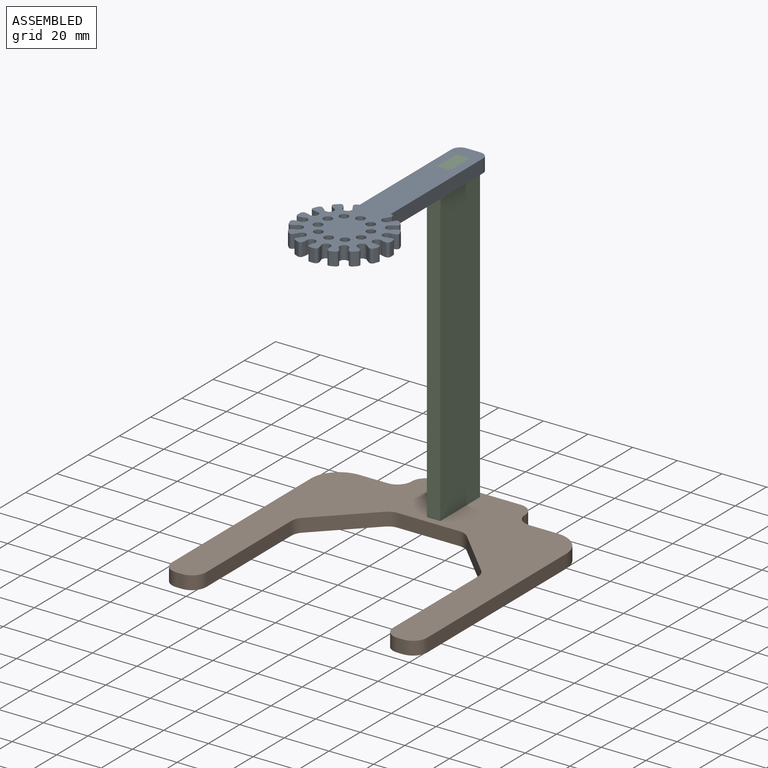
[diagram: assembled view]
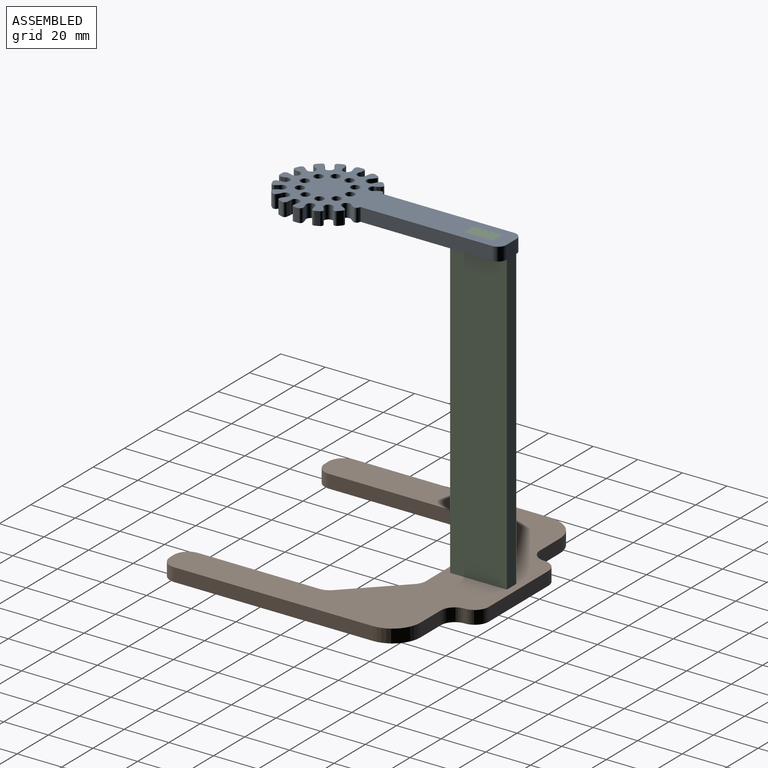
[diagram: assembled view, second angle]
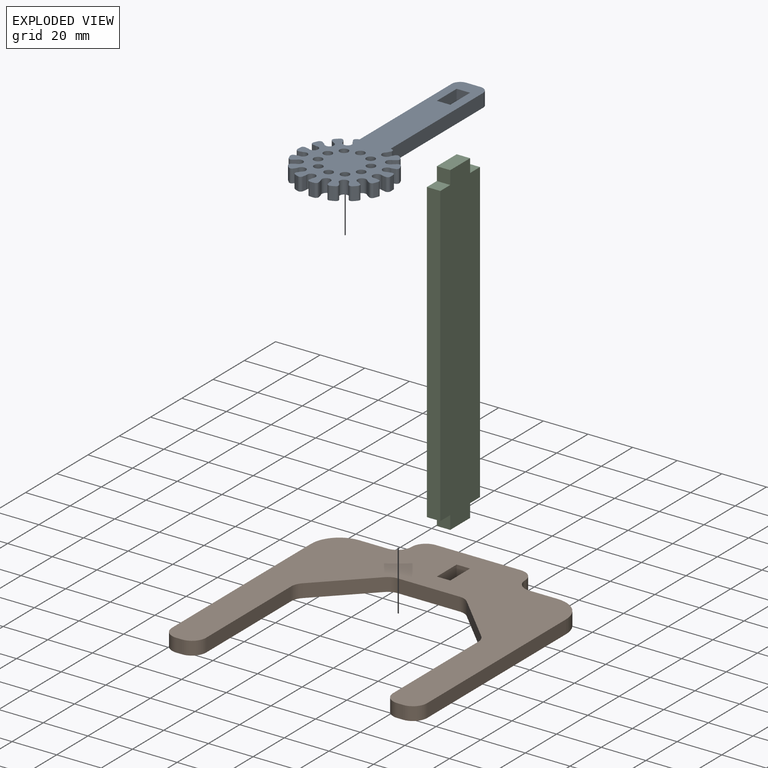
[diagram: exploded view]
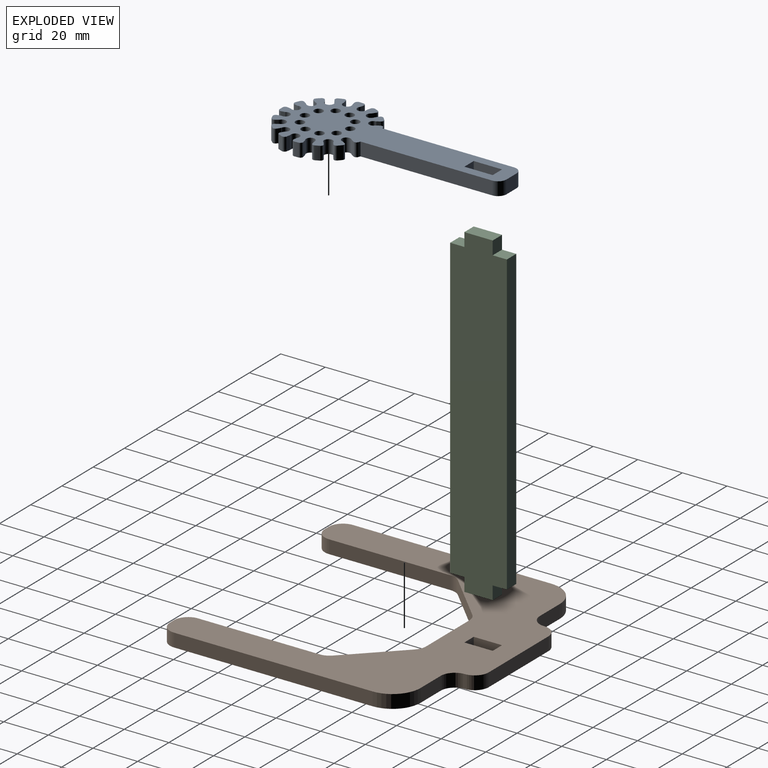
[diagram: exploded view, second angle]
ASSEMBLY  parts=3 mates=3
PART A: 134 faces, bbox 99.8x54.1x6 mm
  f0: plane 6x1.19mm, normal (0.77,-0.63,0), area 9.2mm2, adj f1,f115,f116,f117
  f1: cylinder r=1.2mm len=6mm, axis (0,0,-1), area 2.4mm2, adj f0,f2,f116,f117
  f2: cylinder r=1.95mm len=6mm, axis (0,0,-1), area 44.6mm2, adj f1,f3,f116,f117
  f3: cylinder r=1.2mm len=6mm, axis (0,0,-1), area 2.4mm2, adj f2,f4,f116,f117
  f4: plane 6x1.19mm, normal (-0.77,0.63,0), area 9.2mm2, adj f3,f5,f116,f117
  f5: cylinder r=1.2mm len=6mm, axis (0,0,-1), area 12.4mm2, adj f4,f6,f116,f117
  f6: cylinder r=20.87mm len=6mm, axis (0,0,-1), area 12mm2, adj f5,f7,f116,f117
  f7: cylinder r=1.2mm len=6mm, axis (0,0,-1), area 12.4mm2, adj f6,f8,f116,f117
  f8: plane 6x1.48mm, normal (0.96,-0.28,0), area 9.2mm2, adj f7,f9,f116,f117
  f9: cylinder r=1.2mm len=6mm, axis (0,0,-1), area 2.4mm2, adj f8,f10,f116,f117
  f10: cylinder r=1.95mm len=6mm, axis (0,0,-1), area 44.6mm2, adj f9,f11,f116,f117
  f11: cylinder r=1.2mm len=6mm, axis (0,0,-1), area 2.4mm2, adj f10,f12,f116,f117
  f12: plane 6x1.48mm, normal (-0.96,0.28,0), area 9.2mm2, adj f11,f13,f116,f117
  f13: cylinder r=1.2mm len=6mm, axis (0,0,-1), area 12.4mm2, adj f12,f14,f116,f117
  f14: cylinder r=20.87mm len=6mm, axis (0,0,-1), area 12mm2, adj f13,f15,f116,f117
  f15: cylinder r=1.2mm len=6mm, axis (0,0,-1), area 12.4mm2, adj f14,f16,f116,f117
  f16: plane 6x1.53mm, normal (0.99,0.11,0), area 9.2mm2, adj f15,f17,f116,f117
  f17: cylinder r=1.2mm len=6mm, axis (0,0,-1), area 2.4mm2, adj f16,f18,f116,f117
  f18: cylinder r=1.95mm len=6mm, axis (0,0,-1), area 44.6mm2, adj f17,f19,f116,f117
  f19: cylinder r=1.2mm len=6mm, axis (0,0,-1), area 2.4mm2, adj f18,f20,f116,f117
  f20: plane 6x1.53mm, normal (-0.99,-0.11,0), area 9.2mm2, adj f19,f21,f116,f117
  f21: cylinder r=1.2mm len=6mm, axis (0,0,-1), area 12.4mm2, adj f20,f22,f116,f117
  f22: cylinder r=20.87mm len=6mm, axis (0,0,-1), area 12mm2, adj f21,f23,f116,f117
  f23: cylinder r=1.2mm len=6mm, axis (0,0,-1), area 12.4mm2, adj f22,f24,f116,f117
  f24: plane 6x1.34mm, normal (0.87,0.49,0), area 9.2mm2, adj f23,f25,f116,f117
  f25: cylinder r=1.2mm len=6mm, axis (0,0,-1), area 2.4mm2, adj f24,f26,f116,f117
  f26: cylinder r=1.95mm len=6mm, axis (0,0,-1), area 44.6mm2, adj f25,f27,f116,f117
  f27: cylinder r=1.2mm len=6mm, axis (0,0,-1), area 2.4mm2, adj f26,f28,f116,f117
  f28: plane 6x1.34mm, normal (-0.87,-0.49,0), area 9.2mm2, adj f27,f29,f116,f117
  f29: cylinder r=1.2mm len=6mm, axis (0,0,-1), area 12.4mm2, adj f28,f30,f116,f117
  f30: cylinder r=20.87mm len=6mm, axis (0,0,-1), area 12mm2, adj f29,f31,f116,f117
  f31: cylinder r=1.2mm len=6mm, axis (0,0,-1), area 12.4mm2, adj f30,f32,f116,f117
  f32: plane 6x1.22mm, normal (0.61,0.79,0), area 9.2mm2, adj f31,f33,f116,f117
  f33: cylinder r=1.2mm len=6mm, axis (0,0,-1), area 2.4mm2, adj f32,f34,f116,f117
  f34: cylinder r=1.95mm len=6mm, axis (0,0,-1), area 44.6mm2, adj f33,f35,f116,f117
  f35: cylinder r=1.2mm len=6mm, axis (0,0,-1), area 2.4mm2, adj f34,f36,f116,f117
  f36: plane 6x1.22mm, normal (-0.61,-0.79,0), area 9.2mm2, adj f35,f37,f116,f117
  f37: cylinder r=1.2mm len=6mm, axis (0,0,-1), area 12.4mm2, adj f36,f38,f116,f117
  f38: cylinder r=20.87mm len=6mm, axis (0,0,-1), area 12mm2, adj f37,f39,f116,f117
  f39: cylinder r=1.2mm len=6mm, axis (0,0,-1), area 12.4mm2, adj f38,f40,f116,f117
  f40: plane 6x1.49mm, normal (0.25,0.97,0), area 9.2mm2, adj f39,f41,f116,f117
  f41: cylinder r=1.2mm len=6mm, axis (0,0,-1), area 2.4mm2, adj f40,f42,f116,f117
  f42: cylinder r=1.95mm len=6mm, axis (0,0,-1), area 44.6mm2, adj f41,f43,f116,f117
  f43: cylinder r=1.2mm len=6mm, axis (0,0,-1), area 2.4mm2, adj f42,f44,f116,f117
  f44: plane 6x1.49mm, normal (-0.25,-0.97,0), area 9.2mm2, adj f43,f45,f116,f117
  f45: cylinder r=1.2mm len=6mm, axis (0,0,-1), area 12.4mm2, adj f44,f46,f116,f117
  f46: cylinder r=20.87mm len=6mm, axis (0,0,-1), area 12mm2, adj f45,f47,f116,f117
  f47: cylinder r=1.2mm len=6mm, axis (0,0,-1), area 12.4mm2, adj f46,f48,f116,f117
  f48: plane 6x1.52mm, normal (-0.14,0.99,0), area 9.2mm2, adj f47,f49,f116,f117
  f49: cylinder r=1.2mm len=6mm, axis (0,0,-1), area 2.4mm2, adj f48,f50,f116,f117
  f50: cylinder r=1.95mm len=6mm, axis (0,0,-1), area 44.6mm2, adj f49,f51,f116,f117
  f51: cylinder r=1.2mm len=6mm, axis (0,0,-1), area 2.4mm2, adj f50,f52,f116,f117
  f52: plane 6x1.52mm, normal (0.14,-0.99,0), area 9.2mm2, adj f51,f53,f116,f117
  f53: cylinder r=1.2mm len=6mm, axis (0,0,-1), area 12.4mm2, adj f52,f54,f116,f117
  f54: cylinder r=20.87mm len=6mm, axis (0,0,-1), area 12mm2, adj f53,f55,f116,f117
  f55: cylinder r=1.2mm len=6mm, axis (0,0,-1), area 12.4mm2, adj f54,f56,f116,f117
  f56: plane 6x1.32mm, normal (-0.52,0.86,0), area 9.2mm2, adj f55,f57,f116,f117
  f57: cylinder r=1.2mm len=6mm, axis (0,0,-1), area 2.4mm2, adj f56,f58,f116,f117
  f58: cylinder r=1.95mm len=6mm, axis (0,0,-1), area 44.6mm2, adj f57,f59,f116,f117
  f59: cylinder r=1.2mm len=6mm, axis (0,0,-1), area 2.4mm2, adj f58,f60,f116,f117
  f60: plane 6x1.32mm, normal (0.52,-0.86,0), area 9.2mm2, adj f59,f61,f116,f117
  f61: cylinder r=1.2mm len=6mm, axis (0,0,-1), area 12.4mm2, adj f60,f62,f116,f117
  f62: cylinder r=20.87mm len=6mm, axis (0,0,-1), area 12mm2, adj f61,f63,f116,f117
  f63: cylinder r=1.2mm len=6mm, axis (0,0,-1), area 12.4mm2, adj f62,f64,f116,f117
  f64: plane 6x1.24mm, normal (-0.81,0.59,0), area 9.2mm2, adj f63,f65,f116,f117
  f65: cylinder r=1.2mm len=6mm, axis (0,0,-1), area 2.4mm2, adj f64,f66,f116,f117
  f66: cylinder r=1.95mm len=6mm, axis (0,0,-1), area 44.6mm2, adj f65,f67,f116,f117
  f67: cylinder r=1.2mm len=6mm, axis (0,0,-1), area 2.4mm2, adj f66,f68,f116,f117
  f68: plane 6x1.24mm, normal (0.81,-0.59,0), area 9.2mm2, adj f67,f69,f116,f117
  f69: cylinder r=1.2mm len=6mm, axis (0,0,-1), area 12.4mm2, adj f68,f70,f116,f117
  f70: cylinder r=20.87mm len=6mm, axis (0,0,-1), area 12mm2, adj f69,f71,f116,f117
  f71: cylinder r=1.2mm len=6mm, axis (0,0,-1), area 12.4mm2, adj f70,f72,f116,f117
  f72: plane 6x1.5mm, normal (-0.97,0.23,0), area 9.2mm2, adj f71,f73,f116,f117
  f73: cylinder r=1.2mm len=6mm, axis (0,0,-1), area 2.4mm2, adj f72,f74,f116,f117
  f74: cylinder r=1.95mm len=6mm, axis (0,0,-1), area 44.6mm2, adj f73,f75,f116,f117
  f75: cylinder r=1.2mm len=6mm, axis (0,0,-1), area 2.4mm2, adj f74,f76,f116,f117
  f76: plane 6x1.5mm, normal (0.97,-0.23,0), area 9.2mm2, adj f75,f77,f116,f117
  f77: cylinder r=1.2mm len=6mm, axis (0,0,-1), area 12.4mm2, adj f76,f78,f116,f117
  f78: cylinder r=20.87mm len=6mm, axis (0,0,-1), area 12mm2, adj f77,f79,f116,f117
  f79: cylinder r=1.2mm len=6mm, axis (0,0,-1), area 12.4mm2, adj f78,f80,f116,f117
  f80: plane 6x1.52mm, normal (-0.99,-0.17,0), area 9.2mm2, adj f79,f81,f116,f117
  f81: cylinder r=1.2mm len=6mm, axis (0,0,-1), area 2.4mm2, adj f80,f82,f116,f117
  f82: cylinder r=1.95mm len=6mm, axis (0,0,-1), area 44.6mm2, adj f81,f83,f116,f117
  f83: cylinder r=1.2mm len=6mm, axis (0,0,-1), area 2.4mm2, adj f82,f84,f116,f117
  f84: plane 6x1.52mm, normal (0.99,0.17,0), area 9.2mm2, adj f83,f85,f116,f117
  f85: cylinder r=1.2mm len=6mm, axis (0,0,-1), area 12.4mm2, adj f84,f86,f116,f117
  f86: cylinder r=20.87mm len=6mm, axis (0,0,-1), area 12mm2, adj f85,f87,f116,f117
  f87: cylinder r=1.2mm len=6mm, axis (0,0,-1), area 12.4mm2, adj f86,f88,f116,f117
  f88: plane 6x1.29mm, normal (-0.84,-0.54,0), area 9.2mm2, adj f87,f89,f116,f117
  f89: cylinder r=1.2mm len=6mm, axis (0,0,-1), area 2.4mm2, adj f88,f90,f116,f117
  f90: cylinder r=1.95mm len=6mm, axis (0,0,-1), area 44.6mm2, adj f89,f91,f116,f117
  f91: cylinder r=1.2mm len=6mm, axis (0,0,-1), area 2.4mm2, adj f90,f92,f116,f117
  f92: plane 6x1.29mm, normal (0.84,0.54,0), area 9.2mm2, adj f91,f93,f116,f117
  f93: cylinder r=1.2mm len=6mm, axis (0,0,-1), area 12.4mm2, adj f92,f94,f116,f117
  f94: cylinder r=20.87mm len=6mm, axis (0,0,-1), area 12mm2, adj f93,f95,f116,f117
  f95: cylinder r=1.2mm len=6mm, axis (0,0,-1), area 12.4mm2, adj f94,f96,f116,f117
  f96: plane 6x1.27mm, normal (-0.56,-0.83,0), area 9.2mm2, adj f95,f97,f116,f117
  f97: cylinder r=1.2mm len=6mm, axis (0,0,-1), area 2.4mm2, adj f96,f98,f116,f117
  f98: cylinder r=1.95mm len=6mm, axis (0,0,-1), area 44.6mm2, adj f97,f99,f116,f117
  f99: cylinder r=1.2mm len=6mm, axis (0,0,-1), area 2.4mm2, adj f98,f100,f116,f117
  f100: plane 6x1.27mm, normal (0.56,0.83,0), area 9.2mm2, adj f99,f101,f116,f117
  f101: cylinder r=1.2mm len=6mm, axis (0,0,-1), area 12.4mm2, adj f100,f102,f116,f117
  f102: cylinder r=20.87mm len=6mm, axis (0,0,-1), area 12mm2, adj f101,f103,f116,f117
  f103: cylinder r=1.2mm len=6mm, axis (0,0,-1), area 12.4mm2, adj f102,f104,f116,f117
  f104: plane 6x1.51mm, normal (-0.2,-0.98,0), area 9.2mm2, adj f103,f105,f116,f117
  f105: cylinder r=1.2mm len=6mm, axis (0,0,-1), area 2.4mm2, adj f104,f106,f116,f117
  f106: cylinder r=1.95mm len=6mm, axis (0,0,-1), area 44.6mm2, adj f105,f107,f116,f117
  f107: cylinder r=1.2mm len=6mm, axis (0,0,-1), area 2.4mm2, adj f106,f108,f116,f117
  f108: plane 6x1.51mm, normal (0.2,0.98,0), area 9.2mm2, adj f107,f109,f116,f117
  f109: cylinder r=1.2mm len=6mm, axis (0,0,-1), area 12.4mm2, adj f108,f110,f116,f117
  f110: cylinder r=20.87mm len=6mm, axis (0,0,-1), area 6mm2, adj f109,f111,f116,f117
  f111: plane 55.54x19.78mm, normal (-0.34,0.94,0), area 353.8mm2, adj f110,f116,f117,f132
  f112: plane 6.01x6mm, normal (-0.94,-0.34,0), area 38.3mm2, adj f116,f117,f132,f133
  f113: plane 55.54x19.78mm, normal (0.34,-0.94,0), area 353.8mm2, adj f114,f116,f117,f133
  f114: cylinder r=20.87mm len=6mm, axis (0,0,-1), area 6mm2, adj f113,f115,f116,f117
  f115: cylinder r=1.2mm len=6mm, axis (0,0,-1), area 12.4mm2, adj f0,f114,f116,f117
  f116: plane 99.8x54.05mm, normal (0,0,1), area 1737.7mm2, adj f0,f1,f2,f3,f4,f5,f6,f7
  f117: plane 99.8x54.05mm, normal (0,0,-1), area 1737.7mm2, adj f0,f1,f2,f3,f4,f5,f6,f7
  f118: cylinder r=1.95mm len=6mm, axis (0,0,1), area 73.5mm2, adj f116,f117
  f119: cylinder r=1.95mm len=6mm, axis (0,0,1), area 73.5mm2, adj f116,f117
  f120: cylinder r=1.95mm len=6mm, axis (0,0,1), area 73.5mm2, adj f116,f117
  f121: cylinder r=1.95mm len=6mm, axis (0,0,1), area 73.5mm2, adj f116,f117
  f122: cylinder r=1.95mm len=6mm, axis (0,0,1), area 73.5mm2, adj f116,f117
  f123: cylinder r=1.95mm len=6mm, axis (0,0,1), area 73.5mm2, adj f116,f117
  f124: cylinder r=1.95mm len=6mm, axis (0,0,1), area 73.5mm2, adj f116,f117
  f125: cylinder r=1.95mm len=6mm, axis (0,0,1), area 73.5mm2, adj f116,f117
  f126: cylinder r=1.95mm len=6mm, axis (0,0,1), area 73.5mm2, adj f116,f117
  f127: cylinder r=1.95mm len=6mm, axis (0,0,1), area 73.5mm2, adj f116,f117
  f128: plane 6x5.65mm, normal (0.94,0.34,0), area 36mm2, adj f116,f117,f129,f130
  f129: plane 11.96x6mm, normal (-0.34,0.94,0), area 76.2mm2, adj f116,f117,f128,f131
  f130: plane 11.96x6mm, normal (0.34,-0.94,0), area 76.2mm2, adj f116,f117,f128,f131
  f131: plane 6x5.65mm, normal (-0.94,-0.34,0), area 36mm2, adj f116,f117,f129,f130
  f132: cylinder r=3.81mm len=6mm, axis (0,0,-1), area 35.9mm2, adj f111,f112,f116,f117
  f133: cylinder r=3.81mm len=6mm, axis (0,0,1), area 35.9mm2, adj f112,f113,f116,f117
PART B: 32 faces, bbox 114.3x120.7x6 mm
  f0: plane 88.9x6mm, normal (-1,0,0), area 533.4mm2, adj f16,f17,f18,f31
  f1: plane 6x2.54mm, normal (0,-1,0), area 15.2mm2, adj f16,f17,f18,f19
  f2: plane 54.52x6mm, normal (1,0,0), area 327.1mm2, adj f16,f17,f19,f20
  f3: plane 21.68x21.68mm, normal (0.71,-0.71,0), area 184mm2, adj f16,f17,f20,f21
  f4: plane 27.76x6mm, normal (0,-1,0), area 166.6mm2, adj f16,f17,f21,f22
  f5: plane 21.68x21.68mm, normal (-0.71,-0.71,0), area 184mm2, adj f16,f17,f22,f23
  f6: plane 54.52x6mm, normal (-1,0,0), area 327.1mm2, adj f16,f17,f23,f24
  f7: plane 6x2.54mm, normal (0,-1,0), area 15.2mm2, adj f16,f17,f24,f25
  f8: plane 88.9x6mm, normal (1,0,0), area 533.4mm2, adj f16,f17,f25,f30
  f9: plane 12.7x6mm, normal (0,1,0), area 76.2mm2, adj f16,f17,f27,f30
  f10: plane 38.1x6mm, normal (0,1,0), area 228.6mm2, adj f16,f17,f26,f29
  f11: plane 12.7x6mm, normal (1,0,0), area 76.2mm2, adj f12,f14,f16,f17
  f12: plane 6x6mm, normal (0,-1,0), area 36mm2, adj f11,f13,f16,f17
  f13: plane 12.7x6mm, normal (-1,0,0), area 76.2mm2, adj f12,f14,f16,f17
  f14: plane 6x6mm, normal (0,1,0), area 36mm2, adj f11,f13,f16,f17
  f15: plane 12.7x6mm, normal (0,1,0), area 76.2mm2, adj f16,f17,f28,f31
  f16: plane 120.65x114.3mm, normal (0,0,1), area 6000.8mm2, adj f0,f1,f2,f3,f4,f5,f6,f7
  f17: plane 120.65x114.3mm, normal (0,0,-1), area 6000.8mm2, adj f0,f1,f2,f3,f4,f5,f6,f7
  f18: cylinder r=6.35mm len=6.35mm, axis (0,0,-1), area 59.8mm2, adj f0,f1,f16,f17
  f19: cylinder r=6.35mm len=6.35mm, axis (0,0,-1), area 59.8mm2, adj f1,f2,f16,f17
  f20: cylinder r=6.35mm len=6mm, axis (0,0,1), area 29.9mm2, adj f2,f3,f16,f17
  f21: cylinder r=6.35mm len=6mm, axis (0,0,1), area 29.9mm2, adj f3,f4,f16,f17
  f22: cylinder r=6.35mm len=6mm, axis (0,0,1), area 29.9mm2, adj f4,f5,f16,f17
  f23: cylinder r=6.35mm len=6mm, axis (0,0,1), area 29.9mm2, adj f5,f6,f16,f17
  f24: cylinder r=6.35mm len=6.35mm, axis (0,0,-1), area 59.8mm2, adj f6,f7,f16,f17
  f25: cylinder r=6.35mm len=6.35mm, axis (0,0,-1), area 59.8mm2, adj f7,f8,f16,f17
  f26: cylinder r=6.35mm len=6.35mm, axis (0,0,-1), area 59.8mm2, adj f10,f16,f17,f27
  f27: cylinder r=6.35mm len=6.35mm, axis (0,0,1), area 59.8mm2, adj f9,f16,f17,f26
  f28: cylinder r=6.35mm len=6.35mm, axis (0,0,1), area 59.8mm2, adj f15,f16,f17,f29
  f29: cylinder r=6.35mm len=6.35mm, axis (0,0,-1), area 59.8mm2, adj f10,f16,f17,f28
  f30: cylinder r=12.7mm len=12.7mm, axis (0,0,-1), area 119.7mm2, adj f8,f9,f16,f17
  f31: cylinder r=12.7mm len=12.7mm, axis (0,0,-1), area 119.7mm2, adj f0,f15,f16,f17
PART C: 14 faces, bbox 145.7x25.4x6 mm
  f0: plane 6.35x6mm, normal (-1,0,0), area 38.1mm2, adj f1,f11,f12,f13
  f1: plane 133.7x6mm, normal (0,-1,0), area 802.2mm2, adj f0,f2,f12,f13
  f2: plane 6.35x6mm, normal (1,0,0), area 38.1mm2, adj f1,f3,f12,f13
  f3: plane 6x6mm, normal (0,-1,0), area 36mm2, adj f2,f4,f12,f13
  f4: plane 12.7x6mm, normal (1,0,0), area 76.2mm2, adj f3,f5,f12,f13
  f5: plane 6x6mm, normal (0,1,0), area 36mm2, adj f4,f6,f12,f13
  f6: plane 6.35x6mm, normal (1,0,0), area 38.1mm2, adj f5,f7,f12,f13
  f7: plane 133.7x6mm, normal (0,1,0), area 802.2mm2, adj f6,f8,f12,f13
  f8: plane 6.35x6mm, normal (-1,0,0), area 38.1mm2, adj f7,f9,f12,f13
  f9: plane 6x6mm, normal (0,1,0), area 36mm2, adj f8,f10,f12,f13
  f10: plane 12.7x6mm, normal (-1,0,0), area 76.2mm2, adj f9,f11,f12,f13
  f11: plane 6x6mm, normal (0,-1,0), area 36mm2, adj f0,f10,f12,f13
  f12: plane 145.7x25.4mm, normal (0,0,1), area 3548.4mm2, adj f0,f1,f2,f3,f4,f5,f6,f7
  f13: plane 145.7x25.4mm, normal (0,0,-1), area 3548.4mm2, adj f0,f1,f2,f3,f4,f5,f6,f7
PLACE A rot(axis=(0,0,-1),109.6deg) t=(0,-72.9,139.7)mm
PLACE B at identity fixed
PLACE C rot(axis=(-0.71,0,0.71),180deg) t=(3,27.31,72.85)mm
MATE revolute C.f10 <-> A.f116  axis (0,0,1) through (3,-9.53,145.7)mm
MATE fastened B.f16 <-> C.f2  axis (0,0,1) through (-3,3.18,6)mm
MATE revolute C.f10 <-> A.f116  axis (0,0,1) through (-3,3.18,145.7)mm
